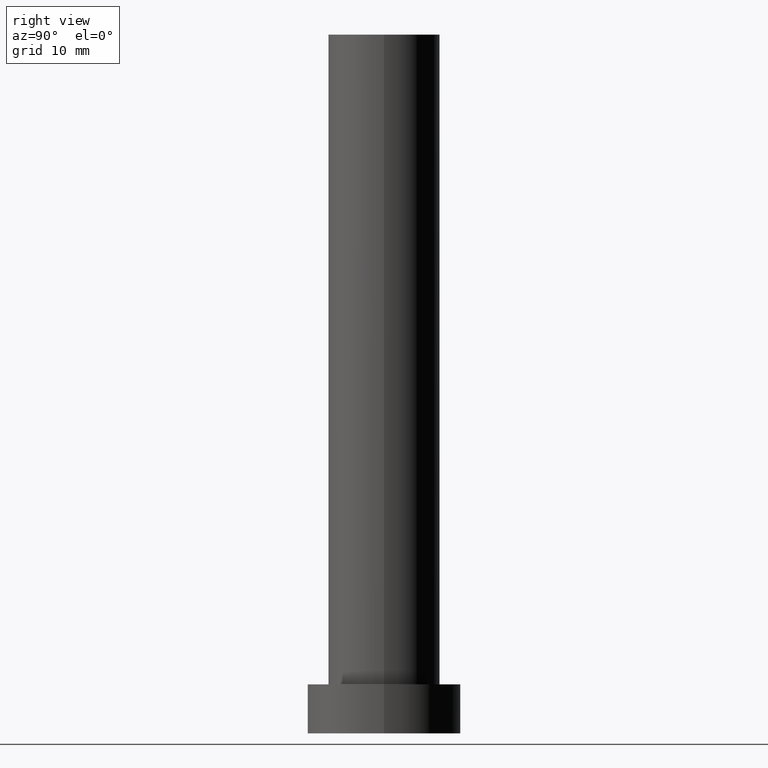
[diagram: clean part render]
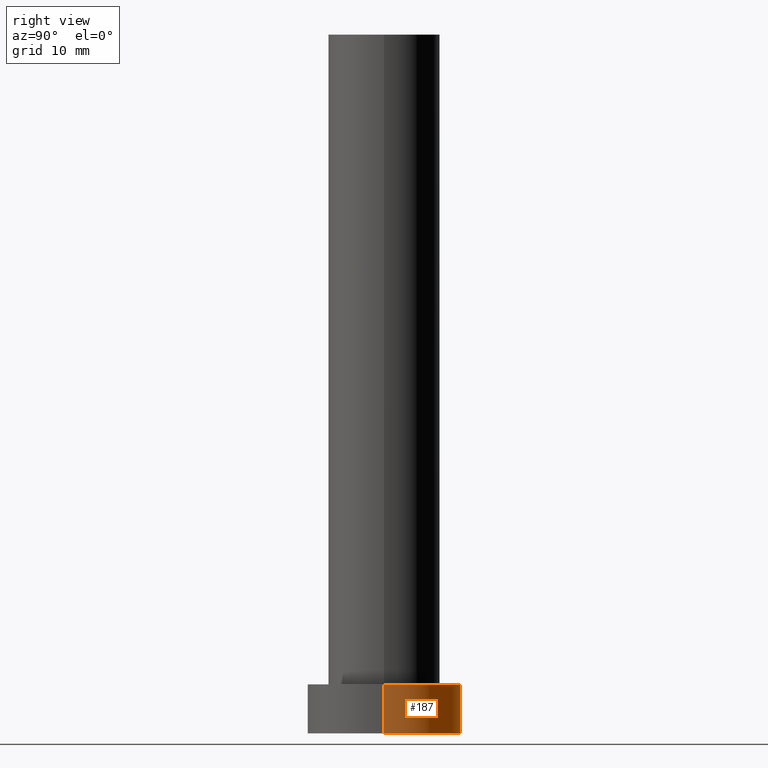
[diagram: same view with one face highlighted and labeled with its STEP entity id]
A machine part, right view. The second image highlights one B-rep face of the part: STEP entity #187.
In plain terms, the highlighted cylindrical surface (partial cylindrical patch) has radius 11 mm, axis along (-0, -0, -1).
Its self-contained STEP definition (entity closure, byte-faithful):
#2 = CARTESIAN_POINT ( 'NONE',  ( 11.00000000000000000, 1.347111479062088405E-15, 7.000000000000000000 ) ) ;
#7 = EDGE_CURVE ( 'NONE', #224, #156, #43, .T. ) ;
#11 = CARTESIAN_POINT ( 'NONE',  ( -11.00000000000000000, 0.000000000000000000, 7.000000000000000000 ) ) ;
#20 = CIRCLE ( 'NONE', #167, 11.00000000000000000 ) ;
#21 = EDGE_CURVE ( 'NONE', #156, #220, #20, .T. ) ;
#23 = VERTEX_POINT ( 'NONE', #58 ) ;
#24 = CYLINDRICAL_SURFACE ( 'NONE', #217, 11.00000000000000000 ) ;
#43 = LINE ( 'NONE', #47, #111 ) ;
#47 = CARTESIAN_POINT ( 'NONE',  ( 11.00000000000000000, 1.347111479062088405E-15, 7.000000000000000000 ) ) ;
#58 = CARTESIAN_POINT ( 'NONE',  ( -11.00000000000000000, 0.000000000000000000, 7.000000000000000000 ) ) ;
#60 = EDGE_LOOP ( 'NONE', ( #238, #178, #137, #130 ) ) ;
#65 = DIRECTION ( 'NONE',  ( 0.000000000000000000, 0.000000000000000000, 1.000000000000000000 ) ) ;
#68 = CARTESIAN_POINT ( 'NONE',  ( 0.000000000000000000, 0.000000000000000000, 0.000000000000000000 ) ) ;
#75 = CARTESIAN_POINT ( 'NONE',  ( 0.000000000000000000, 0.000000000000000000, 7.000000000000000000 ) ) ;
#90 = FACE_OUTER_BOUND ( 'NONE', #60, .T. ) ;
#106 = CARTESIAN_POINT ( 'NONE',  ( 11.00000000000000000, 1.347111479062088405E-15, 0.000000000000000000 ) ) ;
#109 = EDGE_CURVE ( 'NONE', #23, #220, #182, .T. ) ;
#111 = VECTOR ( 'NONE', #244, 1000.000000000000000 ) ;
#116 = DIRECTION ( 'NONE',  ( -0.000000000000000000, -0.000000000000000000, -1.000000000000000000 ) ) ;
#119 = VECTOR ( 'NONE', #116, 1000.000000000000000 ) ;
#130 = ORIENTED_EDGE ( 'NONE', *, *, #109, .F. ) ;
#137 = ORIENTED_EDGE ( 'NONE', *, *, #21, .T. ) ;
#140 = DIRECTION ( 'NONE',  ( -0.000000000000000000, -0.000000000000000000, -1.000000000000000000 ) ) ;
#155 = DIRECTION ( 'NONE',  ( 0.000000000000000000, 0.000000000000000000, 1.000000000000000000 ) ) ;
#156 = VERTEX_POINT ( 'NONE', #106 ) ;
#167 = AXIS2_PLACEMENT_3D ( 'NONE', #68, #155, #240 ) ;
#168 = CIRCLE ( 'NONE', #198, 11.00000000000000000 ) ;
#178 = ORIENTED_EDGE ( 'NONE', *, *, #7, .T. ) ;
#179 = EDGE_CURVE ( 'NONE', #224, #23, #168, .T. ) ;
#182 = LINE ( 'NONE', #11, #119 ) ;
#183 = CARTESIAN_POINT ( 'NONE',  ( 0.000000000000000000, 0.000000000000000000, 7.000000000000000000 ) ) ;
#187 = ADVANCED_FACE ( 'NONE', ( #90 ), #24, .T. ) ;
#198 = AXIS2_PLACEMENT_3D ( 'NONE', #183, #65, #243 ) ;
#199 = DIRECTION ( 'NONE',  ( -1.000000000000000000, 0.000000000000000000, 0.000000000000000000 ) ) ;
#217 = AXIS2_PLACEMENT_3D ( 'NONE', #75, #140, #199 ) ;
#220 = VERTEX_POINT ( 'NONE', #254 ) ;
#224 = VERTEX_POINT ( 'NONE', #2 ) ;
#238 = ORIENTED_EDGE ( 'NONE', *, *, #179, .F. ) ;
#240 = DIRECTION ( 'NONE',  ( 1.000000000000000000, 0.000000000000000000, 0.000000000000000000 ) ) ;
#243 = DIRECTION ( 'NONE',  ( 1.000000000000000000, 0.000000000000000000, 0.000000000000000000 ) ) ;
#244 = DIRECTION ( 'NONE',  ( -0.000000000000000000, -0.000000000000000000, -1.000000000000000000 ) ) ;
#254 = CARTESIAN_POINT ( 'NONE',  ( -11.00000000000000000, 0.000000000000000000, 0.000000000000000000 ) ) ;